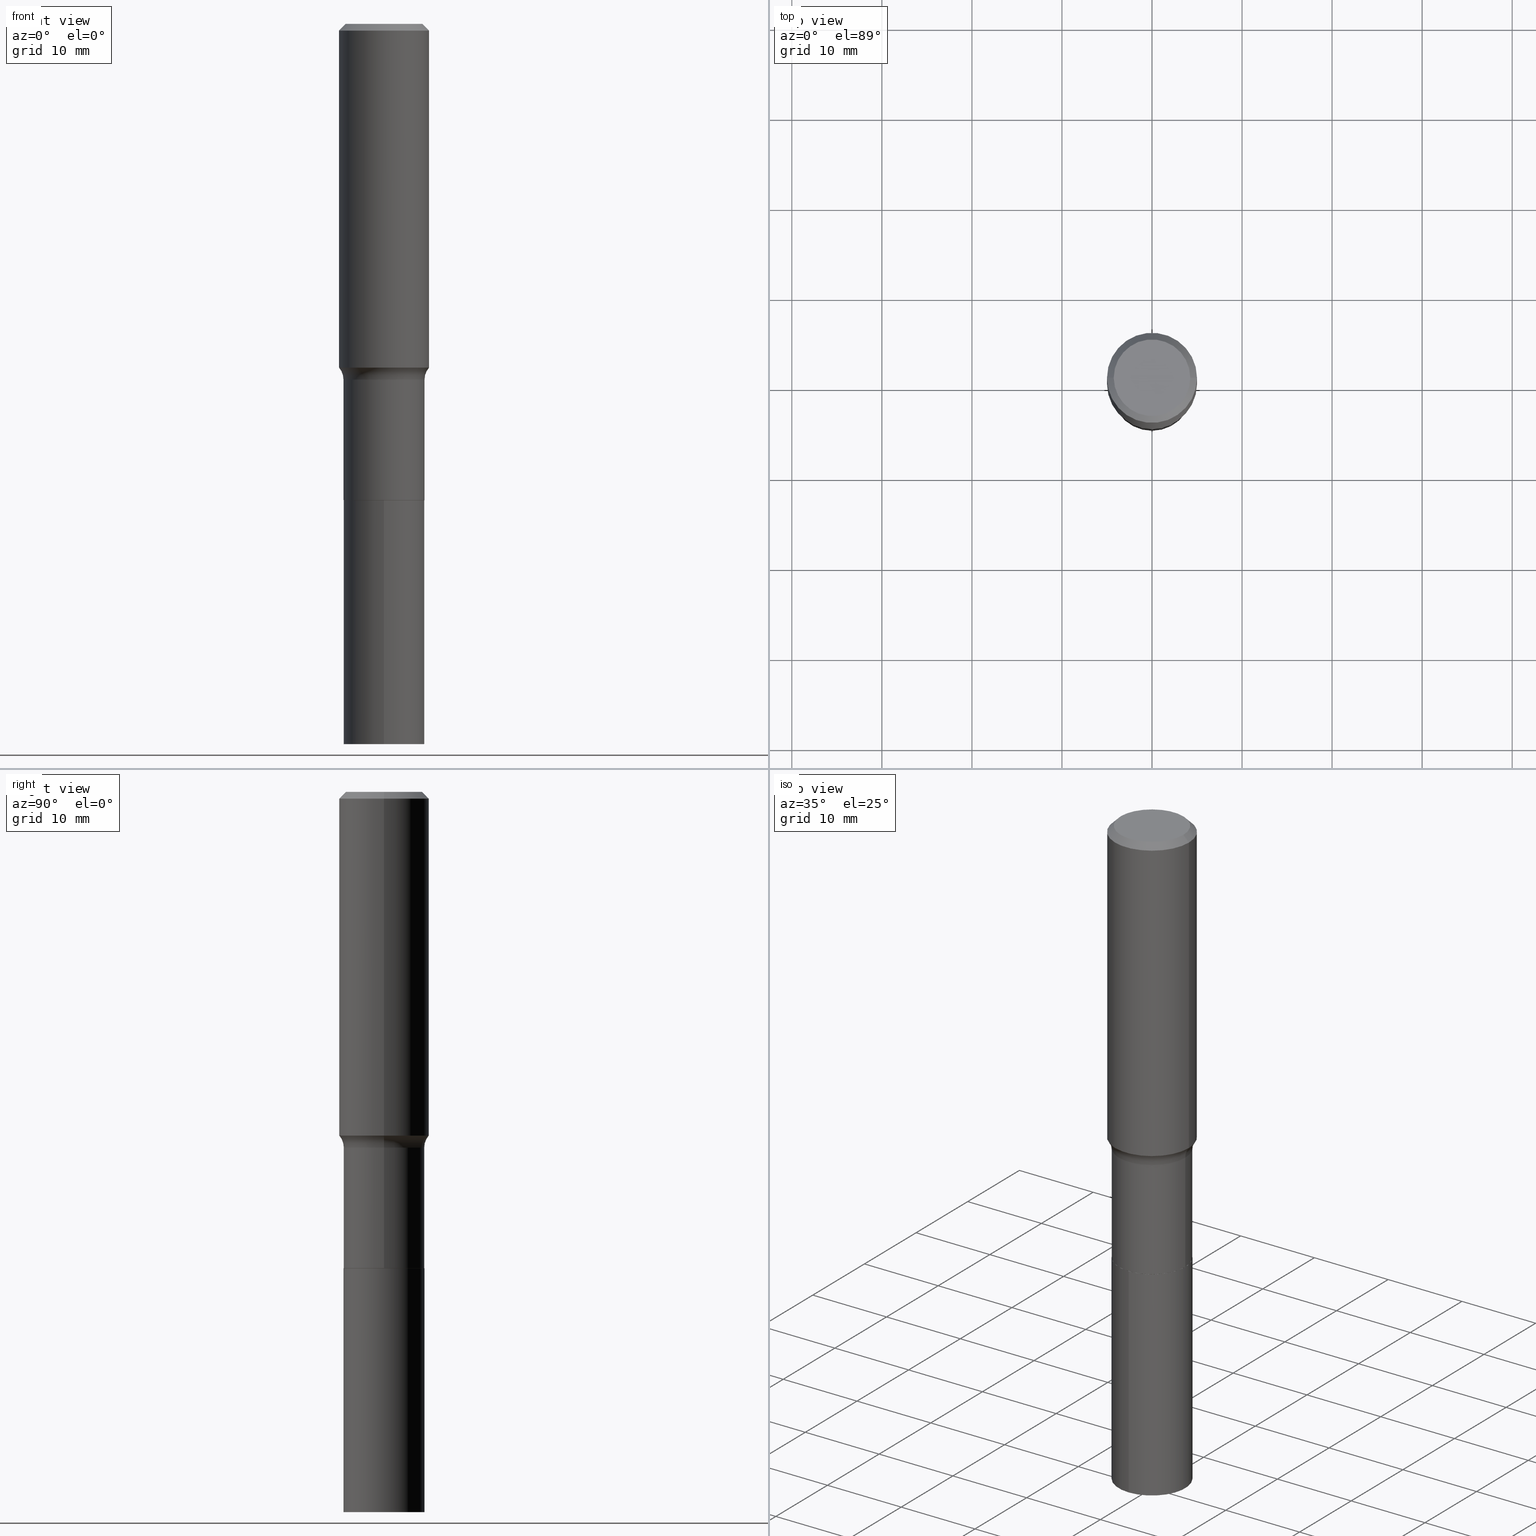
[diagram: canonical four-view strip — front | top / right | iso, engineering-drawing reading convention]
A machine part, canonical four-view strip (front | top / right | iso — engineering-drawing reading convention). The complete STEP part file that produces these views, byte-faithful:
ISO-10303-21;
HEADER;
FILE_DESCRIPTION (( 'STEP AP203' ),
    '1' );
FILE_NAME ('67767.STEP',
    '2024-04-19T16:22:09',
    ( '' ),
    ( '' ),
    'SwSTEP 2.0',
    'SolidWorks 2023',
    '' );
FILE_SCHEMA (( 'CONFIG_CONTROL_DESIGN' ));
ENDSEC;

DATA;
#1 = CIRCLE ( 'NONE', #130, 0.1673224999999999851 ) ;
#2 = DIRECTION ( 'NONE',  ( -2.445982101368739272E-29, 3.490746270925279070E-15, 1.000000000000000000 ) ) ;
#3 = DATE_AND_TIME ( #375, #131 ) ;
#4 = ADVANCED_BREP_SHAPE_REPRESENTATION ( '67767', ( #276, #285, #353 ), #374 ) ;
#5 = CALENDAR_DATE ( 2024, 19, 4 ) ;
#6 = DIRECTION ( 'NONE',  ( 1.000000000000000000, -6.982962677686267499E-15, 4.876294436782262290E-29 ) ) ;
#7 = CC_DESIGN_PERSON_AND_ORGANIZATION_ASSIGNMENT ( #396, #328, ( #436 ) ) ;
#8 = AXIS2_PLACEMENT_3D ( 'NONE', #282, #397, #55 ) ;
#9 = CIRCLE ( 'NONE', #291, 0.1968500000000001915 ) ;
#10 = FACE_OUTER_BOUND ( 'NONE', #210, .T. ) ;
#11 = VERTEX_POINT ( 'NONE', #175 ) ;
#12 = ORIENTED_EDGE ( 'NONE', *, *, #363, .F. ) ;
#13 = DIRECTION ( 'NONE',  ( 1.000000000000000000, -6.982962677686266711E-15, 4.876176775795935793E-29 ) ) ;
#14 = ORIENTED_EDGE ( 'NONE', *, *, #394, .T. ) ;
#15 = CARTESIAN_POINT ( 'NONE',  ( -5.008488096090108951E-47, 7.150793614331948590E-33, 2.048068690724054183E-18 ) ) ;
#16 = VECTOR ( 'NONE', #292, 39.37007874015748143 ) ;
#17 = AXIS2_PLACEMENT_3D ( 'NONE', #227, #376, #79 ) ;
#18 = FACE_OUTER_BOUND ( 'NONE', #181, .T. ) ;
#19 = AXIS2_PLACEMENT_3D ( 'NONE', #81, #261, #115 ) ;
#20 = SECURITY_CLASSIFICATION ( '', '', #275 ) ;
#21 = ADVANCED_FACE ( 'NONE', ( #316 ), #179, .T. ) ;
#22 = CARTESIAN_POINT ( 'NONE',  ( 7.702796237921611496E-29, -1.099598530735201076E-14, -3.149600000000000843 ) ) ;
#23 = VERTEX_POINT ( 'NONE', #125 ) ;
#24 = CC_DESIGN_PERSON_AND_ORGANIZATION_ASSIGNMENT ( #139, #96, ( #436 ) ) ;
#25 = ORIENTED_EDGE ( 'NONE', *, *, #462, .F. ) ;
#26 = DIRECTION ( 'NONE',  ( 1.000000000000000000, -6.982962677686266711E-15, 0.000000000000000000 ) ) ;
#27 = AXIS2_PLACEMENT_3D ( 'NONE', #135, #454, #238 ) ;
#28 = AXIS2_PLACEMENT_3D ( 'NONE', #444, #123, #412 ) ;
#29 = DIRECTION ( 'NONE',  ( -2.445468806185136597E-29, 3.491481338843145583E-15, 1.000000000000000000 ) ) ;
#30 = DIRECTION ( 'NONE',  ( -2.445468806185136877E-29, 3.491481338843145188E-15, 1.000000000000000000 ) ) ;
#31 = DIRECTION ( 'NONE',  ( 2.445468806185136597E-29, -3.491481338843145583E-15, -1.000000000000000000 ) ) ;
#32 = EDGE_CURVE ( 'NONE', #459, #183, #84, .T. ) ;
#33 =( NAMED_UNIT ( * ) SI_UNIT ( $, .STERADIAN. ) SOLID_ANGLE_UNIT ( ) );
#34 = ORIENTED_EDGE ( 'NONE', *, *, #394, .F. ) ;
#35 = AXIS2_PLACEMENT_3D ( 'NONE', #318, #199, #170 ) ;
#36 = FACE_OUTER_BOUND ( 'NONE', #453, .T. ) ;
#37 = APPLICATION_CONTEXT ( 'configuration controlled 3d designs of mechanical parts and assemblies' ) ;
#38 = EDGE_CURVE ( 'NONE', #173, #314, #468, .T. ) ;
#39 = ADVANCED_FACE ( 'NONE', ( #418 ), #269, .T. ) ;
#40 = ADVANCED_FACE ( 'NONE', ( #274 ), #349, .F. ) ;
#41 = DIRECTION ( 'NONE',  ( -2.445468806185136877E-29, 3.491481338843145188E-15, 1.000000000000000000 ) ) ;
#42 = DIRECTION ( 'NONE',  ( -2.445468806185136597E-29, 3.491481338843145583E-15, 1.000000000000000000 ) ) ;
#43 = CARTESIAN_POINT ( 'NONE',  ( -0.1968500000000001915, -3.848738541785168331E-15, -1.502927098234926984 ) ) ;
#44 = AXIS2_PLACEMENT_3D ( 'NONE', #320, #132, #272 ) ;
#45 = AXIS2_PLACEMENT_3D ( 'NONE', #311, #266, #204 ) ;
#46 = LINE ( 'NONE', #382, #161 ) ;
#47 = DIRECTION ( 'NONE',  ( -2.445468806185136597E-29, 3.491481338843145583E-15, 1.000000000000000000 ) ) ;
#48 = CARTESIAN_POINT ( 'NONE',  ( 3.803926728020980075E-29, -5.430999222570513750E-15, -1.555500000000000105 ) ) ;
#49 = ADVANCED_FACE ( 'NONE', ( #18 ), #417, .F. ) ;
#50 =( NAMED_UNIT ( * ) PLANE_ANGLE_UNIT ( ) SI_UNIT ( $, .RADIAN. ) );
#51 = CIRCLE ( 'NONE', #190, 0.1766500000000000015 ) ;
#52 = DIRECTION ( 'NONE',  ( 2.445982101368738992E-29, -3.490746270925279070E-15, -1.000000000000000000 ) ) ;
#53 = ORIENTED_EDGE ( 'NONE', *, *, #124, .T. ) ;
#54 = ORIENTED_EDGE ( 'NONE', *, *, #126, .F. ) ;
#55 = DIRECTION ( 'NONE',  ( 1.000000000000000000, -6.982962677686265922E-15, 4.876176775795935793E-29 ) ) ;
#56 = CALENDAR_DATE ( 2024, 19, 4 ) ;
#57 = ORIENTED_EDGE ( 'NONE', *, *, #74, .F. ) ;
#58 = AXIS2_PLACEMENT_3D ( 'NONE', #241, #52, #354 ) ;
#59 = CONICAL_SURFACE ( 'NONE', #435, 0.1766500000000000015, 0.7853981633975507526 ) ;
#60 =( CONVERSION_BASED_UNIT ( 'INCH', #104 ) LENGTH_UNIT ( ) NAMED_UNIT ( #138 ) );
#61 = EDGE_CURVE ( 'NONE', #234, #23, #129, .T. ) ;
#62 = EDGE_CURVE ( 'NONE', #11, #463, #152, .T. ) ;
#63 = CARTESIAN_POINT ( 'NONE',  ( 0.1673224999999999851, -1.300749711163072397E-15, 4.096137381456741925E-18 ) ) ;
#64 = DIRECTION ( 'NONE',  ( -2.445468806185136597E-29, 3.491481338843145583E-15, 1.000000000000000000 ) ) ;
#65 = FACE_OUTER_BOUND ( 'NONE', #220, .T. ) ;
#66 = CLOSED_SHELL ( 'NONE', ( #295, #338, #191, #200, #39, #222, #230, #372, #365, #392, #119, #157 ) ) ;
#67 = CIRCLE ( 'NONE', #45, 0.1771500000000000019 ) ;
#68 = LINE ( 'NONE', #194, #270 ) ;
#69 = SHAPE_DEFINITION_REPRESENTATION ( #110, #4 ) ;
#70 = APPROVAL ( #217, 'UNSPECIFIED' ) ;
#71 = EDGE_CURVE ( 'NONE', #277, #314, #216, .T. ) ;
#72 = CARTESIAN_POINT ( 'NONE',  ( 0.1771499999999999464, -6.668031060922634566E-15, -1.555500000000000105 ) ) ;
#73 = PERSON_AND_ORGANIZATION_ROLE ( 'creator' ) ;
#74 = EDGE_CURVE ( 'NONE', #23, #234, #373, .T. ) ;
#75 = CIRCLE ( 'NONE', #351, 0.1968500000000001915 ) ;
#76 = VECTOR ( 'NONE', #184, 39.37007874015748143 ) ;
#77 = CARTESIAN_POINT ( 'NONE',  ( -0.1771500000000000019, -5.091579802688896127E-15, -2.082100000000000506 ) ) ;
#78 = PERSON_AND_ORGANIZATION ( #410, #362 ) ;
#79 = DIRECTION ( 'NONE',  ( 1.000000000000000000, -6.982962677686265922E-15, 0.000000000000000000 ) ) ;
#80 = ORIENTED_EDGE ( 'NONE', *, *, #74, .T. ) ;
#81 = CARTESIAN_POINT ( 'NONE',  ( 5.092933335761166106E-29, -7.271359036274735388E-15, -2.082600000000000229 ) ) ;
#82 = EDGE_LOOP ( 'NONE', ( #214, #343, #89, #257 ) ) ;
#83 = DIRECTION ( 'NONE',  ( -2.445468806185136597E-29, 3.491481338843145583E-15, 1.000000000000000000 ) ) ;
#84 = CIRCLE ( 'NONE', #309, 0.1771500000000000019 ) ;
#85 = CC_DESIGN_APPROVAL ( #70, ( #20 ) ) ;
#86 = CARTESIAN_POINT ( 'NONE',  ( 0.000000000000000000, 0.000000000000000000, 0.000000000000000000 ) ) ;
#87 = FACE_OUTER_BOUND ( 'NONE', #357, .T. ) ;
#88 = DIRECTION ( 'NONE',  ( -2.445982101368739552E-29, 3.490746270925278675E-15, 1.000000000000000000 ) ) ;
#89 = ORIENTED_EDGE ( 'NONE', *, *, #38, .F. ) ;
#90 = ORIENTED_EDGE ( 'NONE', *, *, #379, .T. ) ;
#91 = CC_DESIGN_DATE_AND_TIME_ASSIGNMENT ( #3, #228, ( #136 ) ) ;
#92 = AXIS2_PLACEMENT_3D ( 'NONE', #428, #102, #26 ) ;
#93 = EDGE_LOOP ( 'NONE', ( #441, #244, #176, #366 ) ) ;
#94 = PERSON_AND_ORGANIZATION ( #410, #362 ) ;
#95 = UNCERTAINTY_MEASURE_WITH_UNIT (LENGTH_MEASURE( 1.000000000000000082E-05 ), #60, 'distance_accuracy_value', 'NONE');
#96 = PERSON_AND_ORGANIZATION_ROLE ( 'design_supplier' ) ;
#97 = CARTESIAN_POINT ( 'NONE',  ( -0.1968500000000000250, -1.276564940837051115E-15, -0.02952750000000016820 ) ) ;
#98 = ORIENTED_EDGE ( 'NONE', *, *, #438, .T. ) ;
#99 = LINE ( 'NONE', #151, #16 ) ;
#100 = DATE_AND_TIME ( #56, #112 ) ;
#101 = EDGE_CURVE ( 'NONE', #446, #173, #99, .T. ) ;
#102 = DIRECTION ( 'NONE',  ( -2.445468806185136597E-29, 3.491481338843145583E-15, 1.000000000000000000 ) ) ;
#103 = EDGE_CURVE ( 'NONE', #277, #446, #289, .T. ) ;
#104 = LENGTH_MEASURE_WITH_UNIT ( LENGTH_MEASURE( 0.02539999999999999897 ), #384 );
#105 = CARTESIAN_POINT ( 'NONE',  ( 0.000000000000000000, 0.000000000000000000, 0.000000000000000000 ) ) ;
#106 = APPROVAL ( #164, 'UNSPECIFIED' ) ;
#107 = DIRECTION ( 'NONE',  ( 1.000000000000000000, -6.982962677686269866E-15, 0.000000000000000000 ) ) ;
#108 = COORDINATED_UNIVERSAL_TIME_OFFSET ( 5, 0, .BEHIND. ) ;
#109 = AXIS2_PLACEMENT_3D ( 'NONE', #86, #449, #209 ) ;
#110 = PRODUCT_DEFINITION_SHAPE ( 'NONE', 'NONE',  #136 ) ;
#111 = CIRCLE ( 'NONE', #17, 0.1968500000000000250 ) ;
#112 = LOCAL_TIME ( 12, 22, 9.000000000000000000, #246 ) ;
#113 = COORDINATED_UNIVERSAL_TIME_OFFSET ( 5, 0, .BEHIND. ) ;
#114 = APPLICATION_CONTEXT ( 'configuration controlled 3d designs of mechanical parts and assemblies' ) ;
#115 = DIRECTION ( 'NONE',  ( -6.982962677686265922E-15, -1.000000000000000000, 3.084220145260246224E-15 ) ) ;
#116 = APPROVAL_DATE_TIME ( #404, #280 ) ;
#117 = CIRCLE ( 'NONE', #262, 0.08000000000000002942 ) ;
#118 = CYLINDRICAL_SURFACE ( 'NONE', #290, 0.1771499999999999742 ) ;
#119 = ADVANCED_FACE ( 'NONE', ( #255 ), #400, .F. ) ;
#120 = VERTEX_POINT ( 'NONE', #63 ) ;
#121 = LINE ( 'NONE', #162, #197 ) ;
#122 = VERTEX_POINT ( 'NONE', #465 ) ;
#123 = DIRECTION ( 'NONE',  ( 2.445468806185136597E-29, -3.491481338843145583E-15, -1.000000000000000000 ) ) ;
#124 = EDGE_CURVE ( 'NONE', #143, #446, #155, .T. ) ;
#125 = CARTESIAN_POINT ( 'NONE',  ( -1.237031838352045086E-15, -0.1771500000000110209, -3.149600000000000399 ) ) ;
#126 = EDGE_CURVE ( 'NONE', #212, #122, #75, .T. ) ;
#127 = ORIENTED_EDGE ( 'NONE', *, *, #302, .F. ) ;
#128 = CARTESIAN_POINT ( 'NONE',  ( 3.803926728020980075E-29, -5.430999222570513750E-15, -1.555500000000000105 ) ) ;
#129 = CIRCLE ( 'NONE', #196, 0.1771500000000000019 ) ;
#130 = AXIS2_PLACEMENT_3D ( 'NONE', #253, #221, #364 ) ;
#131 = LOCAL_TIME ( 12, 22, 9.000000000000000000, #108 ) ;
#132 = DIRECTION ( 'NONE',  ( -2.445982101368738992E-29, 3.490746270925279070E-15, 1.000000000000000000 ) ) ;
#133 = ORIENTED_EDGE ( 'NONE', *, *, #252, .T. ) ;
#134 = CYLINDRICAL_SURFACE ( 'NONE', #215, 0.1968500000000001082 ) ;
#135 = CARTESIAN_POINT ( 'NONE',  ( 5.092933335761166106E-29, -7.271359036274735388E-15, -2.082600000000000229 ) ) ;
#136 = PRODUCT_DEFINITION ( 'UNKNOWN', '', #436, #208 ) ;
#137 = EDGE_LOOP ( 'NONE', ( #80, #324, #25, #236 ) ) ;
#138 = DIMENSIONAL_EXPONENTS ( 1.000000000000000000, 0.000000000000000000, 0.000000000000000000, 0.000000000000000000, 0.000000000000000000, 0.000000000000000000, 0.000000000000000000 ) ;
#139 = PERSON_AND_ORGANIZATION ( #410, #362 ) ;
#140 = EDGE_LOOP ( 'NONE', ( #98, #330, #317, #145 ) ) ;
#141 = DIRECTION ( 'NONE',  ( -2.445468806185136597E-29, 3.491481338843145583E-15, 1.000000000000000000 ) ) ;
#142 = COORDINATED_UNIVERSAL_TIME_OFFSET ( 5, 0, .BEHIND. ) ;
#143 = VERTEX_POINT ( 'NONE', #159 ) ;
#144 = CARTESIAN_POINT ( 'NONE',  ( 0.000000000000000000, 0.000000000000000000, 0.000000000000000000 ) ) ;
#145 = ORIENTED_EDGE ( 'NONE', *, *, #124, .F. ) ;
#146 = CARTESIAN_POINT ( 'NONE',  ( -0.1766500000000000015, -6.013536066380407395E-15, -2.082600000000000229 ) ) ;
#147 = APPROVAL_ROLE ( '' ) ;
#148 = CC_DESIGN_PERSON_AND_ORGANIZATION_ASSIGNMENT ( #78, #73, ( #136 ) ) ;
#149 = DIRECTION ( 'NONE',  ( -1.000000000000000000, 7.105427357601001859E-15, 0.000000000000000000 ) ) ;
#150 = ORIENTED_EDGE ( 'NONE', *, *, #325, .F. ) ;
#151 = CARTESIAN_POINT ( 'NONE',  ( 0.1771499999999999742, -1.237031838352121999E-15, 8.638147158322498559E-30 ) ) ;
#152 = CIRCLE ( 'NONE', #448, 0.1968500000000000250 ) ;
#153 = TOROIDAL_SURFACE ( 'NONE', #168, 0.2571499999999999342, 0.08000000000000000167 ) ;
#154 = DIRECTION ( 'NONE',  ( 1.000000000000000000, 0.000000000000000000, 0.000000000000000000 ) ) ;
#155 = LINE ( 'NONE', #467, #278 ) ;
#156 = APPLICATION_PROTOCOL_DEFINITION ( 'international standard', 'config_control_design', 1994, #114 ) ;
#157 = ADVANCED_FACE ( 'NONE', ( #457 ), #59, .T. ) ;
#158 = CYLINDRICAL_SURFACE ( 'NONE', #403, 0.1968500000000001082 ) ;
#159 = CARTESIAN_POINT ( 'NONE',  ( 0.1766500000000000015, -8.504899393288014774E-15, -2.082600000000000229 ) ) ;
#160 = APPROVAL_ROLE ( '' ) ;
#161 = VECTOR ( 'NONE', #414, 39.37007874015748143 ) ;
#162 = CARTESIAN_POINT ( 'NONE',  ( 0.1968500000000001082, -1.374596203102542397E-15, 9.598753983154305062E-30 ) ) ;
#163 = ORIENTED_EDGE ( 'NONE', *, *, #363, .T. ) ;
#164 = APPROVAL_STATUS ( 'not_yet_approved' ) ;
#165 = DATE_AND_TIME ( #5, #407 ) ;
#166 = CARTESIAN_POINT ( 'NONE',  ( 0.000000000000000000, 0.000000000000000000, 0.000000000000000000 ) ) ;
#167 = EDGE_LOOP ( 'NONE', ( #231, #425 ) ) ;
#168 = AXIS2_PLACEMENT_3D ( 'NONE', #263, #47, #205 ) ;
#169 = DIRECTION ( 'NONE',  ( -2.445468806185136597E-29, 3.491481338843145583E-15, 1.000000000000000000 ) ) ;
#170 = DIRECTION ( 'NONE',  ( 1.000000000000000000, -6.982962677686269866E-15, 0.000000000000000000 ) ) ;
#171 = EDGE_CURVE ( 'NONE', #234, #459, #389, .T. ) ;
#172 = VERTEX_POINT ( 'NONE', #146 ) ;
#173 = VERTEX_POINT ( 'NONE', #72 ) ;
#174 = DIRECTION ( 'NONE',  ( 1.000000000000000000, -6.982962677686269077E-15, 0.000000000000000000 ) ) ;
#175 = CARTESIAN_POINT ( 'NONE',  ( 0.1968500000000000250, -1.477690918335233294E-15, -0.02952750000000016820 ) ) ;
#176 = ORIENTED_EDGE ( 'NONE', *, *, #301, .T. ) ;
#177 = DIRECTION ( 'NONE',  ( -2.445468806185136597E-29, 3.491481338843145583E-15, 1.000000000000000000 ) ) ;
#178 = LOCAL_TIME ( 12, 22, 9.000000000000000000, #142 ) ;
#179 = CYLINDRICAL_SURFACE ( 'NONE', #27, 0.1771500000000000019 ) ;
#180 = DIRECTION ( 'NONE',  ( -2.445982101368739552E-29, 3.490746270925278675E-15, 1.000000000000000000 ) ) ;
#181 = EDGE_LOOP ( 'NONE', ( #281, #452 ) ) ;
#182 = ORIENTED_EDGE ( 'NONE', *, *, #62, .F. ) ;
#183 = VERTEX_POINT ( 'NONE', #432 ) ;
#184 = DIRECTION ( 'NONE',  ( -2.445982101368739272E-29, 3.490746270925279070E-15, 1.000000000000000000 ) ) ;
#185 = DIRECTION ( 'NONE',  ( 7.105427357601001859E-15, 1.000000000000000000, -3.491481338843145583E-15 ) ) ;
#186 = CARTESIAN_POINT ( 'NONE',  ( 1.258726456399068374E-15, 0.1771499999999927299, -2.082600000000000673 ) ) ;
#187 = DIRECTION ( 'NONE',  ( 1.000000000000000000, -6.982962677686266711E-15, 0.000000000000000000 ) ) ;
#188 = ORIENTED_EDGE ( 'NONE', *, *, #103, .T. ) ;
#189 = DIRECTION ( 'NONE',  ( 1.000000000000000000, -6.982962677686265922E-15, 0.000000000000000000 ) ) ;
#190 = AXIS2_PLACEMENT_3D ( 'NONE', #283, #391, #322 ) ;
#191 = ADVANCED_FACE ( 'NONE', ( #36 ), #158, .T. ) ;
#192 = PERSON_AND_ORGANIZATION ( #410, #362 ) ;
#193 = DIRECTION ( 'NONE',  ( 1.000000000000000000, -6.982962677686266711E-15, 0.000000000000000000 ) ) ;
#194 = CARTESIAN_POINT ( 'NONE',  ( -0.1968500000000001082, 1.398703375343757985E-15, -9.682923725166787881E-30 ) ) ;
#195 = COORDINATED_UNIVERSAL_TIME_OFFSET ( 5, 0, .BEHIND. ) ;
#196 = AXIS2_PLACEMENT_3D ( 'NONE', #22, #180, #460 ) ;
#197 = VECTOR ( 'NONE', #41, 39.37007874015748143 ) ;
#198 = EDGE_CURVE ( 'NONE', #212, #463, #68, .T. ) ;
#199 = DIRECTION ( 'NONE',  ( -2.445468806185136597E-29, 3.491481338843145583E-15, 1.000000000000000000 ) ) ;
#200 = ADVANCED_FACE ( 'NONE', ( #225 ), #303, .F. ) ;
#201 = DIRECTION ( 'NONE',  ( -6.982962677686266711E-15, -1.000000000000000000, 3.491481338843145583E-15 ) ) ;
#202 = VECTOR ( 'NONE', #2, 39.37007874015748143 ) ;
#203 = ORIENTED_EDGE ( 'NONE', *, *, #62, .T. ) ;
#204 = DIRECTION ( 'NONE',  ( 1.000000000000000000, -6.982962677686266711E-15, 0.000000000000000000 ) ) ;
#205 = DIRECTION ( 'NONE',  ( 1.000000000000000000, -6.982962677686267499E-15, 4.883557194083112901E-29 ) ) ;
#206 = FACE_OUTER_BOUND ( 'NONE', #137, .T. ) ;
#207 = CC_DESIGN_DATE_AND_TIME_ASSIGNMENT ( #327, #455, ( #20 ) ) ;
#208 = DESIGN_CONTEXT ( 'detailed design', #114, 'design' ) ;
#209 = DIRECTION ( 'NONE',  ( 1.000000000000000000, -6.982962677686266711E-15, 4.876176775795935793E-29 ) ) ;
#210 = EDGE_LOOP ( 'NONE', ( #421, #163, #203, #242 ) ) ;
#211 = ORIENTED_EDGE ( 'NONE', *, *, #71, .F. ) ;
#212 = VERTEX_POINT ( 'NONE', #43 ) ;
#213 = ADVANCED_FACE ( 'NONE', ( #206 ), #440, .T. ) ;
#214 = ORIENTED_EDGE ( 'NONE', *, *, #305, .T. ) ;
#215 = AXIS2_PLACEMENT_3D ( 'NONE', #458, #177, #431 ) ;
#216 = LINE ( 'NONE', #331, #321 ) ;
#217 = APPROVAL_STATUS ( 'not_yet_approved' ) ;
#218 = APPROVAL_PERSON_ORGANIZATION ( #94, #70, #147 ) ;
#219 = APPROVAL_DATE_TIME ( #165, #106 ) ;
#220 = EDGE_LOOP ( 'NONE', ( #323, #90 ) ) ;
#221 = DIRECTION ( 'NONE',  ( -2.445468806185136597E-29, 3.491481338843145583E-15, 1.000000000000000000 ) ) ;
#222 = ADVANCED_FACE ( 'NONE', ( #405 ), #118, .T. ) ;
#223 = CARTESIAN_POINT ( 'NONE',  ( 7.702796237921611496E-29, -1.099598530735201076E-14, -3.149600000000000843 ) ) ;
#224 = CIRCLE ( 'NONE', #386, 0.1766500000000000015 ) ;
#225 = FACE_OUTER_BOUND ( 'NONE', #239, .T. ) ;
#226 = CC_DESIGN_PERSON_AND_ORGANIZATION_ASSIGNMENT ( #192, #466, ( #249 ) ) ;
#227 = CARTESIAN_POINT ( 'NONE',  ( 7.220858017463203355E-31, -1.030947152326915746E-16, -0.02952750000000016820 ) ) ;
#228 = DATE_TIME_ROLE ( 'creation_date' ) ;
#229 = CARTESIAN_POINT ( 'NONE',  ( 1.258726456399081391E-15, 0.1771499999999890107, -3.149600000000001288 ) ) ;
#230 = ADVANCED_FACE ( 'NONE', ( #347 ), #153, .F. ) ;
#231 = ORIENTED_EDGE ( 'NONE', *, *, #438, .F. ) ;
#232 = DIRECTION ( 'NONE',  ( -2.445468806185136597E-29, 3.491481338843145583E-15, 1.000000000000000000 ) ) ;
#233 = AXIS2_PLACEMENT_3D ( 'NONE', #447, #232, #6 ) ;
#234 = VERTEX_POINT ( 'NONE', #229 ) ;
#235 = CARTESIAN_POINT ( 'NONE',  ( -0.1673224999999999851, 1.219954130253505263E-15, 4.096137381439757534E-18 ) ) ;
#236 = ORIENTED_EDGE ( 'NONE', *, *, #301, .F. ) ;
#237 = CARTESIAN_POINT ( 'NONE',  ( 3.803926728020980075E-29, -5.430999222570513750E-15, -1.555500000000000105 ) ) ;
#238 = DIRECTION ( 'NONE',  ( -6.982962677686265922E-15, -1.000000000000000000, 3.084220145260246224E-15 ) ) ;
#239 = EDGE_LOOP ( 'NONE', ( #54, #14, #245, #254 ) ) ;
#240 = CARTESIAN_POINT ( 'NONE',  ( 1.258726456399094407E-15, 0.1771499999999927299, -2.082600000000000673 ) ) ;
#241 = CARTESIAN_POINT ( 'NONE',  ( 5.092933335761166106E-29, -7.271359036274735388E-15, -2.082600000000000229 ) ) ;
#242 = ORIENTED_EDGE ( 'NONE', *, *, #399, .F. ) ;
#243 = CIRCLE ( 'NONE', #370, 0.1771500000000000019 ) ;
#244 = ORIENTED_EDGE ( 'NONE', *, *, #61, .T. ) ;
#245 = ORIENTED_EDGE ( 'NONE', *, *, #302, .T. ) ;
#246 = COORDINATED_UNIVERSAL_TIME_OFFSET ( 5, 0, .BEHIND. ) ;
#247 = ORIENTED_EDGE ( 'NONE', *, *, #367, .T. ) ;
#248 = DIRECTION ( 'NONE',  ( -0.7071067811865456854, 2.468850131082237733E-15, -0.7071067811865493491 ) ) ;
#249 = PRODUCT ( '67767', '67767', '', ( #359 ) ) ;
#250 = VECTOR ( 'NONE', #248, 39.37007874015748143 ) ;
#251 = CC_DESIGN_SECURITY_CLASSIFICATION ( #20, ( #436 ) ) ;
#252 = EDGE_CURVE ( 'NONE', #122, #11, #121, .T. ) ;
#253 = CARTESIAN_POINT ( 'NONE',  ( -1.001697619218021790E-46, 1.430158722866389718E-32, 4.096137381448108366E-18 ) ) ;
#254 = ORIENTED_EDGE ( 'NONE', *, *, #286, .F. ) ;
#255 = FACE_OUTER_BOUND ( 'NONE', #167, .T. ) ;
#256 = DIRECTION ( 'NONE',  ( -2.445982101368739552E-29, 3.490746270925278675E-15, 1.000000000000000000 ) ) ;
#257 = ORIENTED_EDGE ( 'NONE', *, *, #101, .F. ) ;
#258 = DIRECTION ( 'NONE',  ( -2.445468806185136597E-29, 3.491481338843145583E-15, 1.000000000000000000 ) ) ;
#259 = CLOSED_SHELL ( 'NONE', ( #213, #40, #21, #49 ) ) ;
#260 = CIRCLE ( 'NONE', #279, 0.1771499999999999464 ) ;
#261 = DIRECTION ( 'NONE',  ( -2.445982101368739552E-29, 3.490746270925278675E-15, 1.000000000000000000 ) ) ;
#262 = AXIS2_PLACEMENT_3D ( 'NONE', #287, #185, #149 ) ;
#263 = CARTESIAN_POINT ( 'NONE',  ( 3.803926728020980075E-29, -5.430999222570513750E-15, -1.555500000000000105 ) ) ;
#264 = EDGE_LOOP ( 'NONE', ( #377, #393, #133, #150 ) ) ;
#265 = ORIENTED_EDGE ( 'NONE', *, *, #103, .F. ) ;
#266 = DIRECTION ( 'NONE',  ( -2.445468806185136597E-29, 3.491481338843145583E-15, 1.000000000000000000 ) ) ;
#267 = ORIENTED_EDGE ( 'NONE', *, *, #367, .F. ) ;
#268 = DIRECTION ( 'NONE',  ( 1.000000000000000000, -6.982962677686269866E-15, 0.000000000000000000 ) ) ;
#269 = CYLINDRICAL_SURFACE ( 'NONE', #109, 0.1771499999999999742 ) ;
#270 = VECTOR ( 'NONE', #339, 39.37007874015748143 ) ;
#271 = DIRECTION ( 'NONE',  ( -0.7071067811866199593, 7.493145998870616062E-15, 0.7071067811864750752 ) ) ;
#272 = DIRECTION ( 'NONE',  ( -6.982962677686265922E-15, -1.000000000000000000, 3.490746270925279070E-15 ) ) ;
#273 = EDGE_LOOP ( 'NONE', ( #57, #360 ) ) ;
#274 = FACE_OUTER_BOUND ( 'NONE', #273, .T. ) ;
#275 = SECURITY_CLASSIFICATION_LEVEL ( 'unclassified' ) ;
#276 = MANIFOLD_SOLID_BREP ( 'Body-Move/Copy2[1]', #259 ) ;
#277 = VERTEX_POINT ( 'NONE', #77 ) ;
#278 = VECTOR ( 'NONE', #296, 39.37007874015748143 ) ;
#279 = AXIS2_PLACEMENT_3D ( 'NONE', #128, #42, #409 ) ;
#280 = APPROVAL ( #434, 'UNSPECIFIED' ) ;
#281 = ORIENTED_EDGE ( 'NONE', *, *, #462, .T. ) ;
#282 = CARTESIAN_POINT ( 'NONE',  ( 5.092933335761166106E-29, -7.271359036274735388E-15, -2.082600000000000229 ) ) ;
#283 = CARTESIAN_POINT ( 'NONE',  ( 5.092933335761166106E-29, -7.271359036274735388E-15, -2.082600000000000229 ) ) ;
#284 = APPROVAL_DATE_TIME ( #100, #70 ) ;
#285 = MANIFOLD_SOLID_BREP ( 'Body-Move/Copy2[2]', #66 ) ;
#286 = EDGE_CURVE ( 'NONE', #122, #173, #361, .T. ) ;
#287 = CARTESIAN_POINT ( 'NONE',  ( -0.2571499999999999342, -3.603838577563416196E-15, -1.555500000000000105 ) ) ;
#288 = ORIENTED_EDGE ( 'NONE', *, *, #252, .F. ) ;
#289 = CIRCLE ( 'NONE', #92, 0.1771500000000000019 ) ;
#290 = AXIS2_PLACEMENT_3D ( 'NONE', #166, #169, #13 ) ;
#291 = AXIS2_PLACEMENT_3D ( 'NONE', #329, #29, #187 ) ;
#292 = DIRECTION ( 'NONE',  ( -2.445468806185136877E-29, 3.491481338843145188E-15, 1.000000000000000000 ) ) ;
#293 = CC_DESIGN_APPROVAL ( #106, ( #436 ) ) ;
#294 = DIRECTION ( 'NONE',  ( 2.438088387897960049E-29, -3.491481338843145188E-15, -1.000000000000000000 ) ) ;
#295 = ADVANCED_FACE ( 'NONE', ( #378 ), #420, .T. ) ;
#296 = DIRECTION ( 'NONE',  ( 0.7071067811866199593, -2.468850131083015945E-15, 0.7071067811864750752 ) ) ;
#297 = EDGE_CURVE ( 'NONE', #355, #120, #456, .T. ) ;
#298 = PERSON_AND_ORGANIZATION ( #410, #362 ) ;
#299 = CARTESIAN_POINT ( 'NONE',  ( 5.092933335761166106E-29, -7.271359036274735388E-15, -2.082600000000000229 ) ) ;
#300 = CALENDAR_DATE ( 2024, 19, 4 ) ;
#301 = EDGE_CURVE ( 'NONE', #23, #183, #345, .T. ) ;
#302 = EDGE_CURVE ( 'NONE', #314, #173, #260, .T. ) ;
#303 = TOROIDAL_SURFACE ( 'NONE', #395, 0.2571499999999999342, 0.08000000000000000167 ) ;
#304 = APPROVAL_PERSON_ORGANIZATION ( #298, #280, #160 ) ;
#305 = EDGE_CURVE ( 'NONE', #446, #277, #67, .T. ) ;
#306 = LINE ( 'NONE', #344, #334 ) ;
#307 = APPROVAL_ROLE ( '' ) ;
#308 = CARTESIAN_POINT ( 'NONE',  ( 7.220858017463203355E-31, -1.030947152326915746E-16, -0.02952750000000016820 ) ) ;
#309 = AXIS2_PLACEMENT_3D ( 'NONE', #415, #88, #445 ) ;
#310 = ORIENTED_EDGE ( 'NONE', *, *, #313, .T. ) ;
#311 = CARTESIAN_POINT ( 'NONE',  ( 5.091710601358074426E-29, -7.269613295605314673E-15, -2.082100000000000506 ) ) ;
#312 = EDGE_LOOP ( 'NONE', ( #34, #267, #411, #443 ) ) ;
#313 = EDGE_CURVE ( 'NONE', #172, #143, #224, .T. ) ;
#314 = VERTEX_POINT ( 'NONE', #315 ) ;
#315 = CARTESIAN_POINT ( 'NONE',  ( -0.1771499999999999464, -5.091579802688896916E-15, -1.555500000000000105 ) ) ;
#316 = FACE_OUTER_BOUND ( 'NONE', #93, .T. ) ;
#317 = ORIENTED_EDGE ( 'NONE', *, *, #305, .F. ) ;
#318 = CARTESIAN_POINT ( 'NONE',  ( 5.092933335761166106E-29, -7.271359036274735388E-15, -2.082600000000000229 ) ) ;
#319 = CC_DESIGN_PERSON_AND_ORGANIZATION_ASSIGNMENT ( #419, #388, ( #20 ) ) ;
#320 = CARTESIAN_POINT ( 'NONE',  ( 9.189568700293408618E-30, -2.071082939433205002E-14, -3.149600000000000843 ) ) ;
#321 = VECTOR ( 'NONE', #30, 39.37007874015748143 ) ;
#322 = DIRECTION ( 'NONE',  ( 1.000000000000000000, -6.982962677686269866E-15, 0.000000000000000000 ) ) ;
#323 = ORIENTED_EDGE ( 'NONE', *, *, #297, .T. ) ;
#324 = ORIENTED_EDGE ( 'NONE', *, *, #171, .T. ) ;
#325 = EDGE_CURVE ( 'NONE', #463, #11, #111, .T. ) ;
#326 = ORIENTED_EDGE ( 'NONE', *, *, #101, .T. ) ;
#327 = DATE_AND_TIME ( #390, #178 ) ;
#328 = PERSON_AND_ORGANIZATION_ROLE ( 'creator' ) ;
#329 = CARTESIAN_POINT ( 'NONE',  ( 3.675361336703858371E-29, -5.247441917128926908E-15, -1.502927098234926984 ) ) ;
#330 = ORIENTED_EDGE ( 'NONE', *, *, #356, .T. ) ;
#331 = CARTESIAN_POINT ( 'NONE',  ( -0.1771499999999999742, 1.258726456399017296E-15, -8.713893512386563924E-30 ) ) ;
#332 = CARTESIAN_POINT ( 'NONE',  ( -0.1968500000000000250, 1.271501487869850120E-15, -0.02952750000000016820 ) ) ;
#333 = ORIENTED_EDGE ( 'NONE', *, *, #399, .T. ) ;
#334 = VECTOR ( 'NONE', #271, 39.37007874015748143 ) ;
#335 = DIRECTION ( 'NONE',  ( -6.982962677686265922E-15, -1.000000000000000000, 3.084220145260246224E-15 ) ) ;
#336 = DIRECTION ( 'NONE',  ( -6.982962677686265922E-15, -1.000000000000000000, 3.084220145260246224E-15 ) ) ;
#337 = DIRECTION ( 'NONE',  ( -2.445468806185136597E-29, 3.491481338843145583E-15, 1.000000000000000000 ) ) ;
#338 = ADVANCED_FACE ( 'NONE', ( #10 ), #413, .T. ) ;
#339 = DIRECTION ( 'NONE',  ( -2.445468806185136877E-29, 3.491481338843145188E-15, 1.000000000000000000 ) ) ;
#340 = AXIS2_PLACEMENT_3D ( 'NONE', #48, #141, #350 ) ;
#341 = CONICAL_SURFACE ( 'NONE', #346, 0.1968500000000000250, 0.7853981633974457255 ) ;
#342 = PERSON_AND_ORGANIZATION ( #410, #362 ) ;
#343 = ORIENTED_EDGE ( 'NONE', *, *, #71, .T. ) ;
#344 = CARTESIAN_POINT ( 'NONE',  ( -0.1766500000000000015, -6.016185293554518596E-15, -2.082600000000000229 ) ) ;
#345 = LINE ( 'NONE', #408, #202 ) ;
#346 = AXIS2_PLACEMENT_3D ( 'NONE', #308, #31, #451 ) ;
#347 = FACE_OUTER_BOUND ( 'NONE', #312, .T. ) ;
#348 = DIRECTION ( 'NONE',  ( 1.000000000000000000, -6.982962677686267499E-15, 4.883557194083112901E-29 ) ) ;
#349 = PLANE ( 'NONE',  #44 ) ;
#350 = DIRECTION ( 'NONE',  ( 1.000000000000000000, -6.982962677686263555E-15, 0.000000000000000000 ) ) ;
#351 = AXIS2_PLACEMENT_3D ( 'NONE', #430, #64, #193 ) ;
#352 = CC_DESIGN_APPROVAL ( #280, ( #136 ) ) ;
#353 = AXIS2_PLACEMENT_3D ( 'NONE', #144, #401, #154 ) ;
#354 = DIRECTION ( 'NONE',  ( 6.982962677686265922E-15, 1.000000000000000000, -3.490746270925279070E-15 ) ) ;
#355 = VERTEX_POINT ( 'NONE', #235 ) ;
#356 = EDGE_CURVE ( 'NONE', #172, #277, #306, .T. ) ;
#357 = EDGE_LOOP ( 'NONE', ( #12, #387, #333, #450 ) ) ;
#358 = DIRECTION ( 'NONE',  ( -2.445982101368739552E-29, 3.490746270925278675E-15, 1.000000000000000000 ) ) ;
#359 = MECHANICAL_CONTEXT ( 'NONE', #37, 'mechanical' ) ;
#360 = ORIENTED_EDGE ( 'NONE', *, *, #61, .F. ) ;
#361 = CIRCLE ( 'NONE', #464, 0.08000000000000002942 ) ;
#362 = ORGANIZATION ( 'UNSPECIFIED', 'UNSPECIFIED', '' ) ;
#363 = EDGE_CURVE ( 'NONE', #120, #11, #46, .T. ) ;
#364 = DIRECTION ( 'NONE',  ( 1.000000000000000000, -6.982962677686267499E-15, 4.876294436782262290E-29 ) ) ;
#365 = ADVANCED_FACE ( 'NONE', ( #87 ), #341, .T. ) ;
#366 = ORIENTED_EDGE ( 'NONE', *, *, #32, .F. ) ;
#367 = EDGE_CURVE ( 'NONE', #122, #212, #9, .T. ) ;
#368 = CARTESIAN_POINT ( 'NONE',  ( 7.220858017463203355E-31, -1.030947152326915746E-16, -0.02952750000000016820 ) ) ;
#369 = CARTESIAN_POINT ( 'NONE',  ( 5.092933335761166106E-29, -7.271359036274735388E-15, -2.082600000000000229 ) ) ;
#370 = AXIS2_PLACEMENT_3D ( 'NONE', #369, #256, #336 ) ;
#371 = LOCAL_TIME ( 12, 22, 9.000000000000000000, #195 ) ;
#372 = ADVANCED_FACE ( 'NONE', ( #461 ), #134, .T. ) ;
#373 = CIRCLE ( 'NONE', #427, 0.1771500000000000019 ) ;
#374 =( GEOMETRIC_REPRESENTATION_CONTEXT ( 3 ) GLOBAL_UNCERTAINTY_ASSIGNED_CONTEXT ( ( #95 ) ) GLOBAL_UNIT_ASSIGNED_CONTEXT ( ( #60, #50, #33 ) ) REPRESENTATION_CONTEXT ( 'NONE', 'WORKASPACE' ) );
#375 = CALENDAR_DATE ( 2024, 19, 4 ) ;
#376 = DIRECTION ( 'NONE',  ( -2.445468806185136597E-29, 3.491481338843145583E-15, 1.000000000000000000 ) ) ;
#377 = ORIENTED_EDGE ( 'NONE', *, *, #198, .F. ) ;
#378 = FACE_OUTER_BOUND ( 'NONE', #140, .T. ) ;
#379 = EDGE_CURVE ( 'NONE', #120, #355, #1, .T. ) ;
#380 = CARTESIAN_POINT ( 'NONE',  ( 0.2571499999999999342, -7.226668075137537008E-15, -1.555500000000000105 ) ) ;
#381 = APPROVAL_PERSON_ORGANIZATION ( #342, #106, #307 ) ;
#382 = CARTESIAN_POINT ( 'NONE',  ( 0.1968500000000000250, -1.453583746094017706E-15, -0.02952750000000016820 ) ) ;
#383 = ORIENTED_EDGE ( 'NONE', *, *, #198, .T. ) ;
#384 =( LENGTH_UNIT ( ) NAMED_UNIT ( * ) SI_UNIT ( $, .METRE. ) );
#385 = ORIENTED_EDGE ( 'NONE', *, *, #356, .F. ) ;
#386 = AXIS2_PLACEMENT_3D ( 'NONE', #442, #437, #268 ) ;
#387 = ORIENTED_EDGE ( 'NONE', *, *, #297, .F. ) ;
#388 = PERSON_AND_ORGANIZATION_ROLE ( 'classification_officer' ) ;
#389 = LINE ( 'NONE', #186, #76 ) ;
#390 = CALENDAR_DATE ( 2024, 19, 4 ) ;
#391 = DIRECTION ( 'NONE',  ( -2.445468806185136597E-29, 3.491481338843145583E-15, 1.000000000000000000 ) ) ;
#392 = ADVANCED_FACE ( 'NONE', ( #65 ), #424, .F. ) ;
#393 = ORIENTED_EDGE ( 'NONE', *, *, #126, .T. ) ;
#394 = EDGE_CURVE ( 'NONE', #212, #314, #117, .T. ) ;
#395 = AXIS2_PLACEMENT_3D ( 'NONE', #237, #83, #348 ) ;
#396 = PERSON_AND_ORGANIZATION ( #410, #362 ) ;
#397 = DIRECTION ( 'NONE',  ( -2.438088387897960049E-29, 3.491481338843145188E-15, 1.000000000000000000 ) ) ;
#398 = APPLICATION_PROTOCOL_DEFINITION ( 'international standard', 'config_control_design', 1994, #37 ) ;
#399 = EDGE_CURVE ( 'NONE', #355, #463, #429, .T. ) ;
#400 = PLANE ( 'NONE',  #8 ) ;
#401 = DIRECTION ( 'NONE',  ( 0.000000000000000000, 0.000000000000000000, 1.000000000000000000 ) ) ;
#402 = DIRECTION ( 'NONE',  ( 1.000000000000000000, -6.982962677686266711E-15, 4.876176775795935793E-29 ) ) ;
#403 = AXIS2_PLACEMENT_3D ( 'NONE', #105, #258, #402 ) ;
#404 = DATE_AND_TIME ( #300, #371 ) ;
#405 = FACE_OUTER_BOUND ( 'NONE', #439, .T. ) ;
#406 = AXIS2_PLACEMENT_3D ( 'NONE', #15, #294, #416 ) ;
#407 = LOCAL_TIME ( 12, 22, 9.000000000000000000, #113 ) ;
#408 = CARTESIAN_POINT ( 'NONE',  ( -1.237031838352071118E-15, -0.1771500000000073016, -2.082599999999999785 ) ) ;
#409 = DIRECTION ( 'NONE',  ( 1.000000000000000000, -6.982962677686263555E-15, 0.000000000000000000 ) ) ;
#410 = PERSON ( 'UNSPECIFIED', 'UNSPECIFIED', 'UNSPECIFIED', ('UNSPECIFIED'), ('UNSPECIFIED'), ('UNSPECIFIED') ) ;
#411 = ORIENTED_EDGE ( 'NONE', *, *, #286, .T. ) ;
#412 = DIRECTION ( 'NONE',  ( -1.000000000000000000, 6.982962677686265922E-15, 0.000000000000000000 ) ) ;
#413 = CONICAL_SURFACE ( 'NONE', #28, 0.1968500000000000250, 0.7853981633974457255 ) ;
#414 = DIRECTION ( 'NONE',  ( 0.7071067811865456854, -7.319954787623249734E-15, -0.7071067811865493491 ) ) ;
#415 = CARTESIAN_POINT ( 'NONE',  ( 5.092933335761166106E-29, -7.271359036274735388E-15, -2.082600000000000229 ) ) ;
#416 = DIRECTION ( 'NONE',  ( -1.000000000000000000, 6.982962677686265922E-15, -4.876176775795935793E-29 ) ) ;
#417 = PLANE ( 'NONE',  #58 ) ;
#418 = FACE_OUTER_BOUND ( 'NONE', #82, .T. ) ;
#419 = PERSON_AND_ORGANIZATION ( #410, #362 ) ;
#420 = CONICAL_SURFACE ( 'NONE', #35, 0.1766500000000000015, 0.7853981633975507526 ) ;
#421 = ORIENTED_EDGE ( 'NONE', *, *, #379, .F. ) ;
#422 = EDGE_LOOP ( 'NONE', ( #385, #310, #53, #265 ) ) ;
#423 = PRODUCT_RELATED_PRODUCT_CATEGORY ( 'detail', '', ( #249 ) ) ;
#424 = PLANE ( 'NONE',  #406 ) ;
#425 = ORIENTED_EDGE ( 'NONE', *, *, #313, .F. ) ;
#426 = CARTESIAN_POINT ( 'NONE',  ( 0.1771500000000000019, -8.506645133957437067E-15, -2.082100000000000506 ) ) ;
#427 = AXIS2_PLACEMENT_3D ( 'NONE', #223, #358, #335 ) ;
#428 = CARTESIAN_POINT ( 'NONE',  ( 5.091710601358074426E-29, -7.269613295605314673E-15, -2.082100000000000506 ) ) ;
#429 = LINE ( 'NONE', #332, #250 ) ;
#430 = CARTESIAN_POINT ( 'NONE',  ( 3.675361336703858371E-29, -5.247441917128926908E-15, -1.502927098234926984 ) ) ;
#431 = DIRECTION ( 'NONE',  ( 1.000000000000000000, -6.982962677686266711E-15, 4.876176775795935793E-29 ) ) ;
#432 = CARTESIAN_POINT ( 'NONE',  ( -1.237031838352071118E-15, -0.1771500000000073016, -2.082599999999999785 ) ) ;
#433 = DIRECTION ( 'NONE',  ( -2.445468806185136597E-29, 3.491481338843145583E-15, 1.000000000000000000 ) ) ;
#434 = APPROVAL_STATUS ( 'not_yet_approved' ) ;
#435 = AXIS2_PLACEMENT_3D ( 'NONE', #299, #433, #107 ) ;
#436 = PRODUCT_DEFINITION_FORMATION_WITH_SPECIFIED_SOURCE ( 'ANY', '', #249, .NOT_KNOWN. ) ;
#437 = DIRECTION ( 'NONE',  ( -2.445468806185136597E-29, 3.491481338843145583E-15, 1.000000000000000000 ) ) ;
#438 = EDGE_CURVE ( 'NONE', #143, #172, #51, .T. ) ;
#439 = EDGE_LOOP ( 'NONE', ( #211, #188, #326, #127 ) ) ;
#440 = CYLINDRICAL_SURFACE ( 'NONE', #19, 0.1771500000000000019 ) ;
#441 = ORIENTED_EDGE ( 'NONE', *, *, #171, .F. ) ;
#442 = CARTESIAN_POINT ( 'NONE',  ( 5.092933335761166106E-29, -7.271359036274735388E-15, -2.082600000000000229 ) ) ;
#443 = ORIENTED_EDGE ( 'NONE', *, *, #38, .T. ) ;
#444 = CARTESIAN_POINT ( 'NONE',  ( 7.220858017463203355E-31, -1.030947152326915746E-16, -0.02952750000000016820 ) ) ;
#445 = DIRECTION ( 'NONE',  ( -6.982962677686265922E-15, -1.000000000000000000, 3.084220145260246224E-15 ) ) ;
#446 = VERTEX_POINT ( 'NONE', #426 ) ;
#447 = CARTESIAN_POINT ( 'NONE',  ( -1.001697619218021790E-46, 1.430158722866389718E-32, 4.096137381448108366E-18 ) ) ;
#448 = AXIS2_PLACEMENT_3D ( 'NONE', #368, #337, #189 ) ;
#449 = DIRECTION ( 'NONE',  ( -2.445468806185136597E-29, 3.491481338843145583E-15, 1.000000000000000000 ) ) ;
#450 = ORIENTED_EDGE ( 'NONE', *, *, #325, .T. ) ;
#451 = DIRECTION ( 'NONE',  ( -1.000000000000000000, 6.982962677686265922E-15, 0.000000000000000000 ) ) ;
#452 = ORIENTED_EDGE ( 'NONE', *, *, #32, .T. ) ;
#453 = EDGE_LOOP ( 'NONE', ( #247, #383, #182, #288 ) ) ;
#454 = DIRECTION ( 'NONE',  ( -2.445982101368739552E-29, 3.490746270925278675E-15, 1.000000000000000000 ) ) ;
#455 = DATE_TIME_ROLE ( 'classification_date' ) ;
#456 = CIRCLE ( 'NONE', #233, 0.1673224999999999851 ) ;
#457 = FACE_OUTER_BOUND ( 'NONE', #422, .T. ) ;
#458 = CARTESIAN_POINT ( 'NONE',  ( 0.000000000000000000, 0.000000000000000000, 0.000000000000000000 ) ) ;
#459 = VERTEX_POINT ( 'NONE', #240 ) ;
#460 = DIRECTION ( 'NONE',  ( -6.982962677686265922E-15, -1.000000000000000000, 3.084220145260246224E-15 ) ) ;
#461 = FACE_OUTER_BOUND ( 'NONE', #264, .T. ) ;
#462 = EDGE_CURVE ( 'NONE', #183, #459, #243, .T. ) ;
#463 = VERTEX_POINT ( 'NONE', #97 ) ;
#464 = AXIS2_PLACEMENT_3D ( 'NONE', #380, #201, #174 ) ;
#465 = CARTESIAN_POINT ( 'NONE',  ( 0.1968500000000001915, -6.622038120231470094E-15, -1.502927098234926984 ) ) ;
#466 = PERSON_AND_ORGANIZATION_ROLE ( 'design_owner' ) ;
#467 = CARTESIAN_POINT ( 'NONE',  ( 0.1766500000000000015, -8.504899393288014774E-15, -2.082600000000000229 ) ) ;
#468 = CIRCLE ( 'NONE', #340, 0.1771499999999999464 ) ;
ENDSEC;
END-ISO-10303-21;
